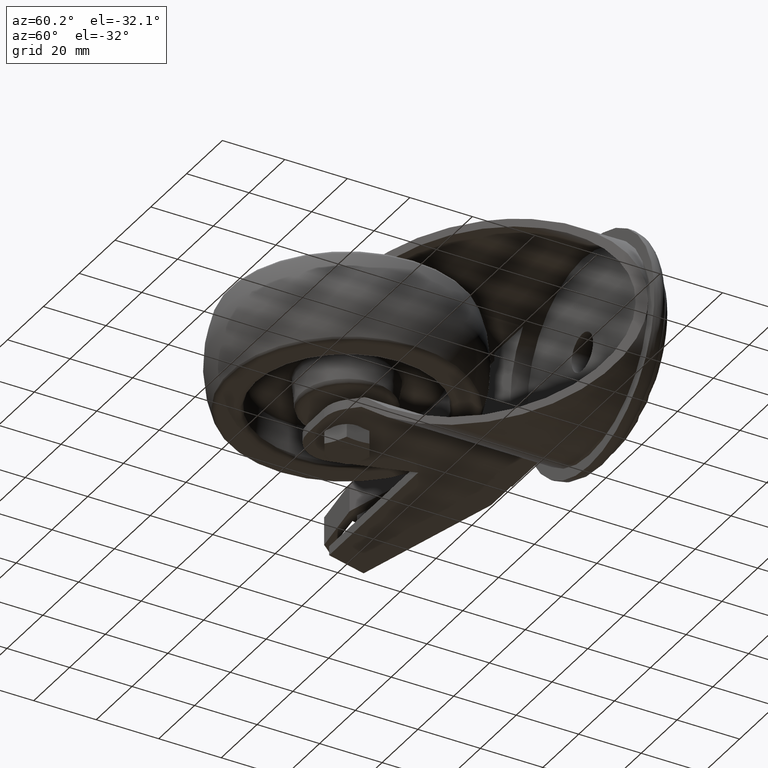
[diagram: clean part render]
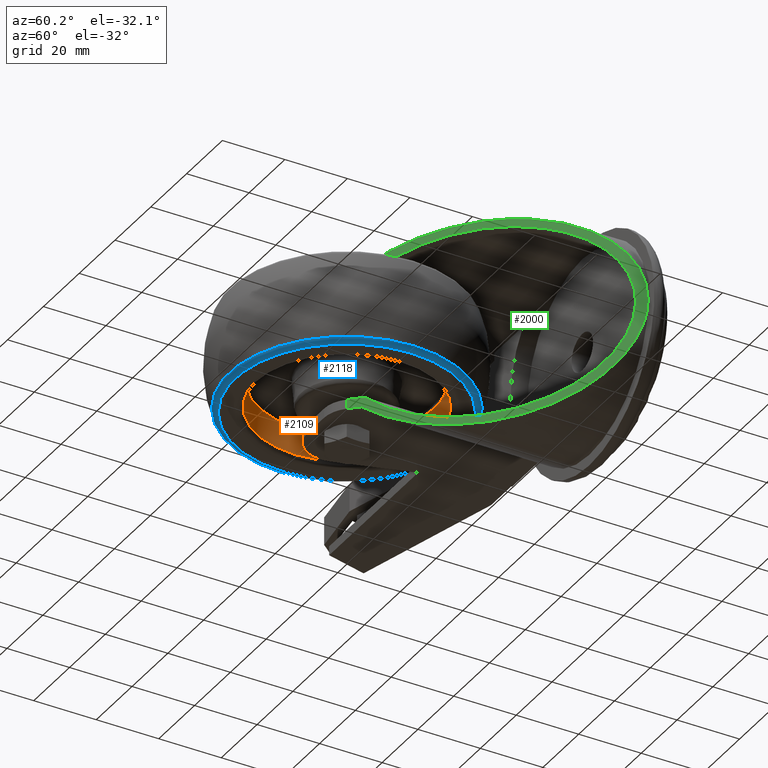
[diagram: same view with three faces highlighted in distinct colors, each labeled with its STEP entity id]
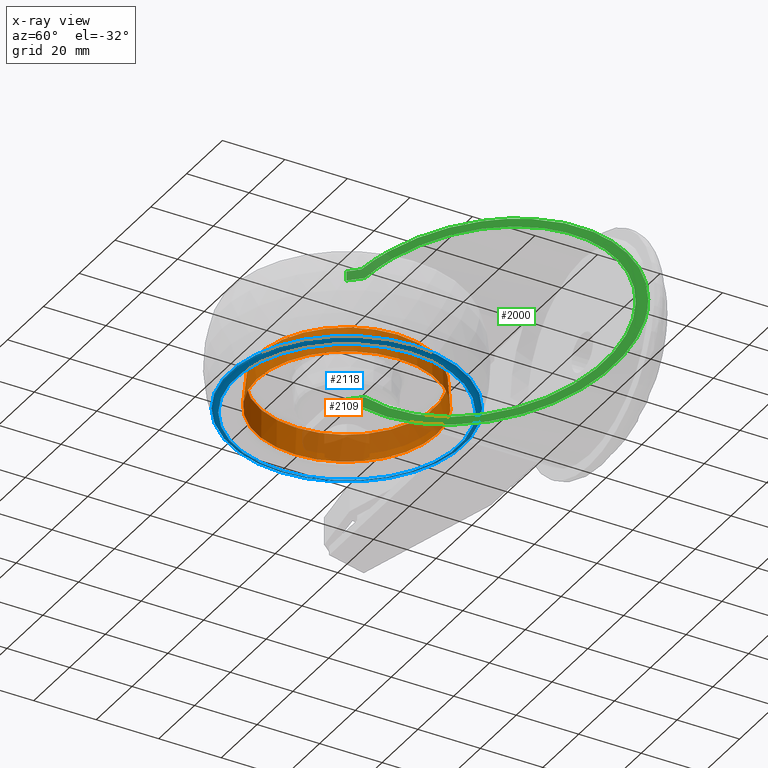
[diagram: x-ray of the same camera — body ghosted, the three highlighted faces saturated]
A machine part, auxiliary view with three faces highlighted in distinct colors.
The next image is the same camera in x-ray (body ghosted, the three faces saturated) — at least one of them is partly hidden behind the body in this view.
Their STEP definitions:

[orange] entity #2109 — the highlighted conical surface has half-angle 5 deg.
#100=CONICAL_SURFACE('',#2447,28.8402729518514,0.0872664625997159);
#353=FACE_OUTER_BOUND('',#501,.T.);
#501=EDGE_LOOP('',(#1929,#1930,#1931,#1932,#1933,#1934));
#601=CIRCLE('',#2445,28.8402729518514);
#602=CIRCLE('',#2446,28.8402729518514);
#603=CIRCLE('',#2448,28.107489038046);
#604=CIRCLE('',#2449,28.107489038046);
#757=LINE('',#3784,#894);
#894=VECTOR('',#3053,28.8402729518514);
#1071=VERTEX_POINT('',#3774);
#1072=VERTEX_POINT('',#3776);
#1073=VERTEX_POINT('',#3780);
#1074=VERTEX_POINT('',#3781);
#1358=EDGE_CURVE('',#1071,#1072,#601,.T.);
#1359=EDGE_CURVE('',#1072,#1071,#602,.T.);
#1360=EDGE_CURVE('',#1073,#1074,#603,.T.);
#1361=EDGE_CURVE('',#1074,#1073,#604,.T.);
#1362=EDGE_CURVE('',#1073,#1072,#757,.T.);
#1929=ORIENTED_EDGE('',*,*,#1360,.T.);
#1930=ORIENTED_EDGE('',*,*,#1361,.T.);
#1931=ORIENTED_EDGE('',*,*,#1362,.T.);
#1932=ORIENTED_EDGE('',*,*,#1358,.F.);
#1933=ORIENTED_EDGE('',*,*,#1359,.F.);
#1934=ORIENTED_EDGE('',*,*,#1362,.F.);
#2109=ADVANCED_FACE('',(#353),#100,.F.);
#2445=AXIS2_PLACEMENT_3D('',#3777,#3043,#3044);
#2446=AXIS2_PLACEMENT_3D('',#3778,#3045,#3046);
#2447=AXIS2_PLACEMENT_3D('',#3779,#3047,#3048);
#2448=AXIS2_PLACEMENT_3D('',#3782,#3049,#3050);
#2449=AXIS2_PLACEMENT_3D('',#3783,#3051,#3052);
#3043=DIRECTION('center_axis',(0.,0.,1.));
#3044=DIRECTION('ref_axis',(1.,0.,0.));
#3045=DIRECTION('center_axis',(0.,0.,1.));
#3046=DIRECTION('ref_axis',(1.,0.,0.));
#3047=DIRECTION('center_axis',(0.,0.,-1.));
#3048=DIRECTION('ref_axis',(-1.,0.,0.));
#3049=DIRECTION('center_axis',(0.,0.,1.));
#3050=DIRECTION('ref_axis',(1.,0.,0.));
#3051=DIRECTION('center_axis',(0.,0.,1.));
#3052=DIRECTION('ref_axis',(1.,0.,0.));
#3053=DIRECTION('',(0.0871557427476576,-1.06735001383229E-17,-0.996194698091746));
#3774=CARTESIAN_POINT('',(-28.8402729518514,-3.53191479570208E-15,-13.1743114854953));
#3776=CARTESIAN_POINT('',(28.8402729518514,0.,-13.1743114854953));
#3777=CARTESIAN_POINT('Origin',(0.,0.,-13.1743114854953));
#3778=CARTESIAN_POINT('Origin',(0.,0.,-13.1743114854953));
#3779=CARTESIAN_POINT('Origin',(0.,0.,-13.1743114854953));
#3780=CARTESIAN_POINT('',(28.107489038046,0.,-4.79855302407849));
#3781=CARTESIAN_POINT('',(-28.107489038046,-3.44217464825124E-15,-4.79855302407849));
#3782=CARTESIAN_POINT('Origin',(0.,0.,-4.79855302407849));
#3783=CARTESIAN_POINT('Origin',(0.,0.,-4.79855302407849));
#3784=CARTESIAN_POINT('',(28.8402729518514,-3.53191479570208E-15,-13.1743114854953));

[blue] entity #2118 — the highlighted toroidal blend (fillet) surface has major radius 35.7071 mm and minor (blend) radius 2 mm.
#148=TOROIDAL_SURFACE('',#2470,35.7071421427143,1.99999999999998);
#362=FACE_OUTER_BOUND('',#511,.T.);
#511=EDGE_LOOP('',(#1966,#1967,#1968,#1969));
#598=CIRCLE('',#2441,35.7071421427142);
#616=CIRCLE('',#2469,37.5864654133834);
#617=CIRCLE('',#2471,1.99999999999998);
#1069=VERTEX_POINT('',#3769);
#1081=VERTEX_POINT('',#3811);
#1355=EDGE_CURVE('',#1069,#1069,#598,.T.);
#1376=EDGE_CURVE('',#1081,#1081,#616,.T.);
#1377=EDGE_CURVE('',#1081,#1069,#617,.T.);
#1966=ORIENTED_EDGE('',*,*,#1376,.F.);
#1967=ORIENTED_EDGE('',*,*,#1377,.T.);
#1968=ORIENTED_EDGE('',*,*,#1355,.T.);
#1969=ORIENTED_EDGE('',*,*,#1377,.F.);
#2118=ADVANCED_FACE('',(#362),#148,.T.);
#2441=AXIS2_PLACEMENT_3D('',#3770,#3035,#3036);
#2469=AXIS2_PLACEMENT_3D('',#3813,#3094,#3095);
#2470=AXIS2_PLACEMENT_3D('',#3814,#3096,#3097);
#2471=AXIS2_PLACEMENT_3D('',#3815,#3098,#3099);
#3035=DIRECTION('center_axis',(0.,0.,1.));
#3036=DIRECTION('ref_axis',(1.,0.,0.));
#3094=DIRECTION('center_axis',(0.,0.,1.));
#3095=DIRECTION('ref_axis',(1.,0.,0.));
#3096=DIRECTION('center_axis',(0.,0.,1.));
#3097=DIRECTION('ref_axis',(1.,0.,0.));
#3098=DIRECTION('center_axis',(1.22464679914735E-16,-1.,0.));
#3099=DIRECTION('ref_axis',(-1.,-1.22464679914735E-16,0.));
#3769=CARTESIAN_POINT('',(-35.7071421427142,-4.37286373317745E-15,-15.));
#3770=CARTESIAN_POINT('Origin',(0.,0.,-15.));
#3811=CARTESIAN_POINT('',(-37.5864654133834,-4.60301445597625E-15,-13.6842105263158));
#3813=CARTESIAN_POINT('Origin',(0.,0.,-13.6842105263158));
#3814=CARTESIAN_POINT('Origin',(0.,0.,-13.));
#3815=CARTESIAN_POINT('Origin',(-35.7071421427143,-4.37286373317746E-15,
-13.));

[green] entity #2000 — the highlighted planar face has unit normal (0.7188, -0.6952, 0).
#176=PLANE('',#2251);
#244=FACE_OUTER_BOUND('',#375,.T.);
#375=EDGE_LOOP('',(#1441,#1442,#1443,#1444,#1445,#1446,#1447,#1448,#1449,
#1450,#1451));
#618=ELLIPSE('',#2231,47.4676159234785,33.);
#619=ELLIPSE('',#2252,43.8715844141241,30.5);
#620=ELLIPSE('',#2253,43.8715844141241,30.5);
#621=ELLIPSE('',#2254,47.4676159234785,33.);
#622=ELLIPSE('',#2255,47.4676159234785,33.);
#653=LINE('',#3179,#790);
#656=LINE('',#3195,#793);
#661=LINE('',#3206,#798);
#664=LINE('',#3215,#801);
#665=LINE('',#3221,#802);
#666=LINE('',#3225,#803);
#790=VECTOR('',#2529,1000.);
#793=VECTOR('',#2544,1000.);
#798=VECTOR('',#2553,1000.);
#801=VECTOR('',#2562,1000.);
#802=VECTOR('',#2569,1000.);
#803=VECTOR('',#2574,1000.);
#897=VERTEX_POINT('',#3109);
#899=VERTEX_POINT('',#3112);
#926=VERTEX_POINT('',#3176);
#927=VERTEX_POINT('',#3178);
#933=VERTEX_POINT('',#3192);
#934=VERTEX_POINT('',#3194);
#938=VERTEX_POINT('',#3205);
#941=VERTEX_POINT('',#3213);
#942=VERTEX_POINT('',#3217);
#943=VERTEX_POINT('',#3220);
#944=VERTEX_POINT('',#3223);
#1083=EDGE_CURVE('',#899,#897,#618,.T.);
#1115=EDGE_CURVE('',#927,#926,#653,.T.);
#1123=EDGE_CURVE('',#934,#933,#656,.T.);
#1129=EDGE_CURVE('',#938,#927,#661,.T.);
#1134=EDGE_CURVE('',#933,#941,#664,.T.);
#1135=EDGE_CURVE('',#926,#942,#619,.F.);
#1136=EDGE_CURVE('',#942,#934,#620,.F.);
#1137=EDGE_CURVE('',#941,#943,#665,.T.);
#1138=EDGE_CURVE('',#943,#899,#621,.T.);
#1139=EDGE_CURVE('',#897,#944,#622,.T.);
#1140=EDGE_CURVE('',#938,#944,#666,.T.);
#1441=ORIENTED_EDGE('',*,*,#1129,.T.);
#1442=ORIENTED_EDGE('',*,*,#1115,.T.);
#1443=ORIENTED_EDGE('',*,*,#1135,.T.);
#1444=ORIENTED_EDGE('',*,*,#1136,.T.);
#1445=ORIENTED_EDGE('',*,*,#1123,.T.);
#1446=ORIENTED_EDGE('',*,*,#1134,.T.);
#1447=ORIENTED_EDGE('',*,*,#1137,.T.);
#1448=ORIENTED_EDGE('',*,*,#1138,.T.);
#1449=ORIENTED_EDGE('',*,*,#1083,.T.);
#1450=ORIENTED_EDGE('',*,*,#1139,.T.);
#1451=ORIENTED_EDGE('',*,*,#1140,.F.);
#2000=ADVANCED_FACE('',(#244),#176,.T.);
#2231=AXIS2_PLACEMENT_3D('',#3113,#2482,#2483);
#2251=AXIS2_PLACEMENT_3D('',#3216,#2563,#2564);
#2252=AXIS2_PLACEMENT_3D('',#3218,#2565,#2566);
#2253=AXIS2_PLACEMENT_3D('',#3219,#2567,#2568);
#2254=AXIS2_PLACEMENT_3D('',#3222,#2570,#2571);
#2255=AXIS2_PLACEMENT_3D('',#3224,#2572,#2573);
#2482=DIRECTION('center_axis',(0.718805899606343,-0.695210816005559,0.));
#2483=DIRECTION('ref_axis',(-0.695210816005559,-0.718805899606343,0.));
#2529=DIRECTION('',(0.695210816005559,0.718805899606343,0.));
#2544=DIRECTION('',(-0.695210816005559,-0.718805899606343,0.));
#2553=DIRECTION('',(0.,0.,-1.));
#2562=DIRECTION('',(0.,0.,-1.));
#2563=DIRECTION('center_axis',(0.718805899606343,-0.695210816005559,0.));
#2564=DIRECTION('ref_axis',(0.695210816005559,0.718805899606343,0.));
#2565=DIRECTION('center_axis',(0.718805899606343,-0.695210816005559,0.));
#2566=DIRECTION('ref_axis',(-0.695210816005559,-0.718805899606343,0.));
#2567=DIRECTION('center_axis',(0.718805899606343,-0.695210816005559,0.));
#2568=DIRECTION('ref_axis',(-0.695210816005559,-0.718805899606343,0.));
#2569=DIRECTION('',(0.69521081600556,0.718805899606343,0.));
#2570=DIRECTION('center_axis',(0.718805899606343,-0.695210816005559,0.));
#2571=DIRECTION('ref_axis',(-0.695210816005559,-0.718805899606343,0.));
#2572=DIRECTION('center_axis',(0.718805899606343,-0.695210816005559,0.));
#2573=DIRECTION('ref_axis',(-0.695210816005559,-0.718805899606343,0.));
#2574=DIRECTION('',(0.69521081600556,0.718805899606343,0.));
#3109=CARTESIAN_POINT('',(39.,21.0799976339556,33.));
#3112=CARTESIAN_POINT('',(72.,55.2,0.));
#3113=CARTESIAN_POINT('Origin',(39.,21.0799976339556,0.));
#3176=CARTESIAN_POINT('',(15.5479212008828,-3.16803218769697,19.5));
#3178=CARTESIAN_POINT('',(11.8880589960634,-6.95210816005559,19.5));
#3179=CARTESIAN_POINT('',(72.,55.2,19.5));
#3192=CARTESIAN_POINT('',(11.8880589960634,-6.95210816005559,-19.5));
#3194=CARTESIAN_POINT('',(15.5479212008828,-3.16803218769697,-19.5));
#3195=CARTESIAN_POINT('',(72.,55.2,-19.5));
#3205=CARTESIAN_POINT('',(11.8880589960634,-6.95210816005559,22.5));
#3206=CARTESIAN_POINT('',(11.8880589960634,-6.95210816005559,80.));
#3213=CARTESIAN_POINT('',(11.8880589960634,-6.95210816005559,-22.5));
#3215=CARTESIAN_POINT('',(11.8880589960634,-6.95210816005559,80.));
#3216=CARTESIAN_POINT('Origin',(72.,55.2,80.));
#3217=CARTESIAN_POINT('',(39.,21.0799976339556,30.5));
#3218=CARTESIAN_POINT('Origin',(39.,21.0799976339556,0.));
#3219=CARTESIAN_POINT('Origin',(39.,21.0799976339556,0.));
#3220=CARTESIAN_POINT('',(14.8597845908534,-3.87952378655657,-22.5));
#3221=CARTESIAN_POINT('',(9.61646402621518,-9.30079984932579,-22.5));
#3222=CARTESIAN_POINT('Origin',(39.,21.0799976339556,0.));
#3223=CARTESIAN_POINT('',(14.8597845908534,-3.87952378655659,22.5));
#3224=CARTESIAN_POINT('Origin',(39.,21.0799976339556,0.));
#3225=CARTESIAN_POINT('',(9.61646402621518,-9.30079984932579,22.5));